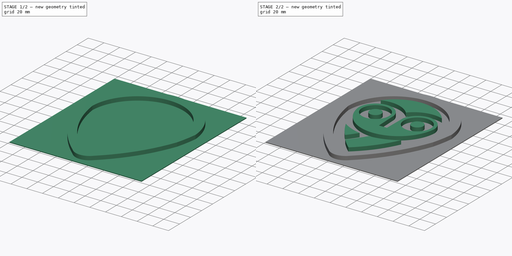
[diagram: build sequence overview — one tinted view per stage of 2, left to right]
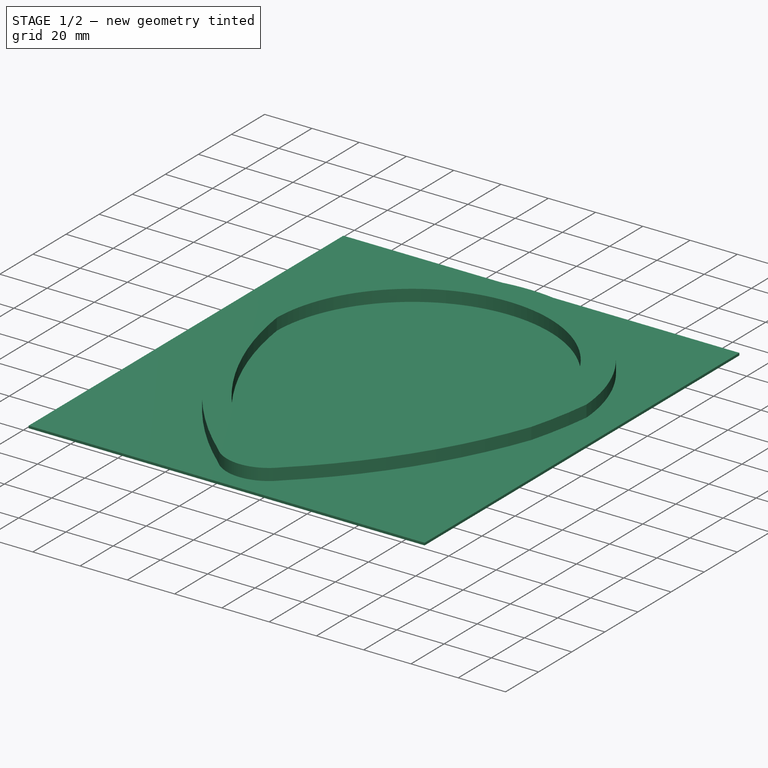
[diagram: stage 1 of 2 — iso view after this stage's code; geometry added in this stage tinted green]
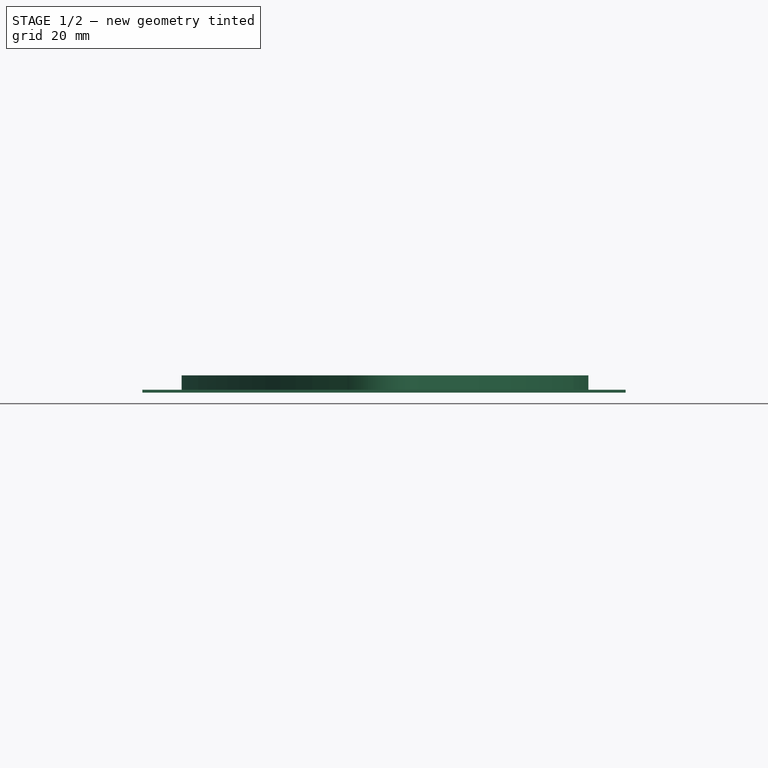
[diagram: stage 1 of 2 — front view after this stage's code; geometry added in this stage tinted green]
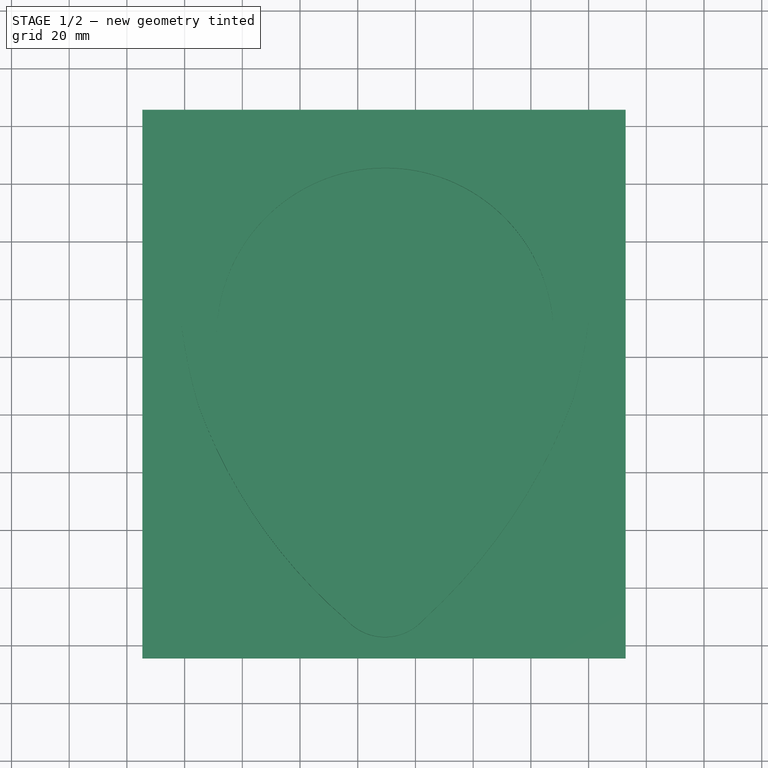
[diagram: stage 1 of 2 — top view after this stage's code; geometry added in this stage tinted green]
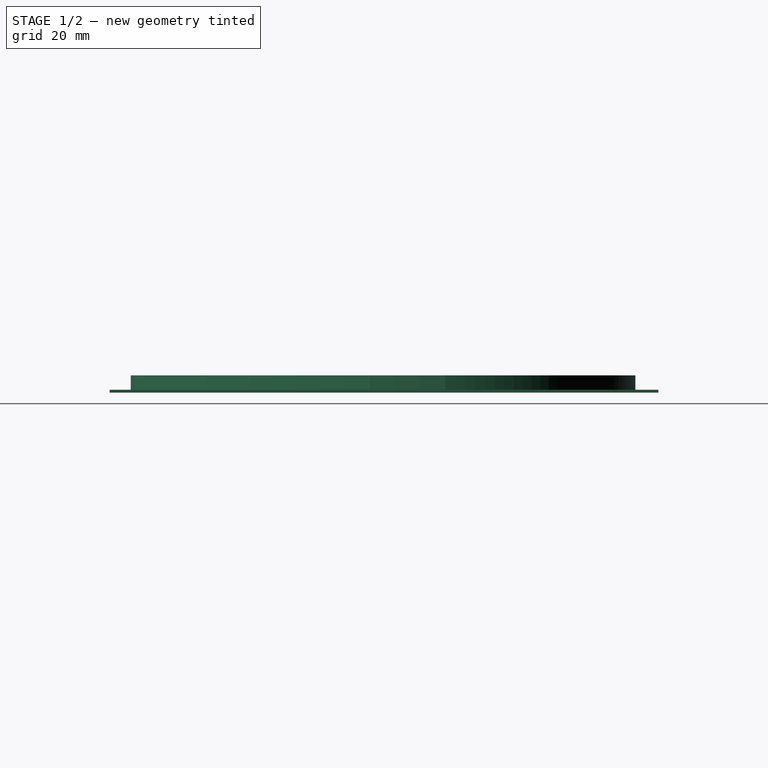
[diagram: stage 1 of 2 — right view after this stage's code; geometry added in this stage tinted green]
FCSTD DOCUMENT  (FreeCAD 0.16R6706 (Git))
Label: NSLOGO
License: All rights reserved
LicenseURL: http://en.wikipedia.org/wiki/All_rights_reserved
objects: Sketcher::SketchObject×5, PartDesign::Pad×3, PartDesign::Pocket×1, Part::Feature×1
note: 14 computed .brp shape members not serialized (recipe doc carries the construction recipe); baked Part::Feature solids carry a one-line shape summary decoded from their .brp

FEATURE [Sketcher::SketchObject] Sketch010  label="NS001"
  Placement = pos=(0,0,5) rot=(0,0,1;0rad)
  sketch-geometry (30):
    g0: Circle CenterX=83.0307 CenterY=-107.539 CenterZ=0 NormalX=0 NormalY=0 NormalZ=1 Radius=7.48536
    g1: Circle CenterX=136.173 CenterY=-107.537 CenterZ=0 NormalX=0 NormalY=0 NormalZ=1 Radius=7.48536
    g2: Circle CenterX=83.0307 CenterY=-107.539 CenterZ=0 NormalX=0 NormalY=0 NormalZ=1 Radius=17.1287
    g3: Circle CenterX=136.173 CenterY=-107.537 CenterZ=0 NormalX=0 NormalY=0 NormalZ=1 Radius=17.1287
    g4: LineSegment StartX=104.908 StartY=-132.509 StartZ=0 EndX=114.955 EndY=-132.462 EndZ=0
    g5: LineSegment StartX=114.955 StartY=-132.462 StartZ=0 EndX=115.359 EndY=-104.014 EndZ=0
    g6: LineSegment StartX=104.908 StartY=-132.509 StartZ=0 EndX=103.786 EndY=-103.688 EndZ=0
    g7: ArcOfCircle CenterX=83.0307 CenterY=-107.539 CenterZ=0 NormalX=0 NormalY=0 NormalZ=1 Radius=21.1096 StartAngle=0.183428 EndAngle=3.3182
    g8: ArcOfCircle CenterX=136.173 CenterY=-107.537 CenterZ=0 NormalX=0 NormalY=0 NormalZ=1 Radius=21.1096 StartAngle=0.0388727 EndAngle=2.97393
    g9: ArcOfCircle CenterX=109.472 CenterY=-102.981 CenterZ=0 NormalX=0 NormalY=0 NormalZ=1 Radius=47.9405 StartAngle=3.31488 EndAngle=6.2052
    g10: ArcOfCircle CenterX=109.648 CenterY=-110.35 CenterZ=0 NormalX=0 NormalY=0 NormalZ=1 Radius=48.8663 StartAngle=0.649284 EndAngle=2.48848
    g11: ArcOfCircle CenterX=136.234 CenterY=-114.304 CenterZ=0 NormalX=0 NormalY=0 NormalZ=1 Radius=35.6983 StartAngle=1.21792 EndAngle=2.41367
    g12: ArcOfCircle CenterX=82.8423 CenterY=-114.452 CenterZ=0 NormalX=0 NormalY=0 NormalZ=1 Radius=35.8642 StartAngle=0.729343 EndAngle=1.91207
    g13: ArcOfCircle CenterX=109.487 CenterY=-98.9331 CenterZ=0 NormalX=0 NormalY=0 NormalZ=1 Radius=61 StartAngle=4.73997 EndAngle=5.32413
    g14: ArcOfCircle CenterX=109.487 CenterY=-98.9331 CenterZ=0 NormalX=0 NormalY=0 NormalZ=1 Radius=61 StartAngle=4.09549 EndAngle=4.5385
    g15: ArcOfCircle CenterX=109.511 CenterY=-112.867 CenterZ=0 NormalX=0 NormalY=0 NormalZ=1 Radius=58.3912 StartAngle=0.0949348 EndAngle=3.11567
    g16: ArcOfCircle CenterX=109.475 CenterY=-112.795 CenterZ=0 NormalX=0 NormalY=0 NormalZ=1 Radius=70.5919 StartAngle=0.0660885 EndAngle=3.09382
    g17: ArcOfCircle CenterX=-10.2169 CenterY=-65.1135 CenterZ=0 NormalX=0 NormalY=0 NormalZ=1 Radius=197.478 StartAngle=5.45063 EndAngle=5.9255
    g18: ArcOfCircle CenterX=-3.87731 CenterY=-85.4589 CenterZ=0 NormalX=0 NormalY=0 NormalZ=1 Radius=185.183 StartAngle=6.01655 EndAngle=6.16043
    g19: ArcOfCircle CenterX=213.212 CenterY=-86.8898 CenterZ=0 NormalX=0 NormalY=0 NormalZ=1 Radius=175.699 StartAngle=3.2702 EndAngle=3.4279
    g20: ArcOfCircle CenterX=213.053 CenterY=-75.5678 CenterZ=0 NormalX=0 NormalY=0 NormalZ=1 Radius=179.077 StartAngle=3.48884 EndAngle=4.00249
    g21: ArcOfCircle CenterX=109.417 CenterY=-199.252 CenterZ=0 NormalX=0 NormalY=0 NormalZ=1 Radius=17.8396 StartAngle=3.88949 EndAngle=5.55087
    g22: ArcOfCircle CenterX=191.338 CenterY=-92.2056 CenterZ=0 NormalX=0 NormalY=0 NormalZ=1 Radius=141.5 StartAngle=3.27733 EndAngle=4.05713
    g23: ArcOfCircle CenterX=17.955 CenterY=-88.2496 CenterZ=0 NormalX=0 NormalY=0 NormalZ=1 Radius=150.895 StartAngle=5.40484 EndAngle=6.15639
    g24: ArcOfCircle CenterX=109.699 CenterY=-201.02 CenterZ=0 NormalX=0 NormalY=0 NormalZ=1 Radius=5.69685 StartAngle=3.77681 EndAngle=5.6499
    g25: ArcOfCircle CenterX=19.2733 CenterY=-90.5452 CenterZ=0 NormalX=0 NormalY=0 NormalZ=1 Radius=138.16 StartAngle=5.42751 EndAngle=5.84736
    g26: ArcOfCircle CenterX=191.18 CenterY=-89.6239 CenterZ=0 NormalX=0 NormalY=0 NormalZ=1 Radius=131.048 StartAngle=3.60916 EndAngle=3.82139
    g27: ArcOfCircle CenterX=190.198 CenterY=-101.501 CenterZ=0 NormalX=0 NormalY=0 NormalZ=1 Radius=123.161 StartAngle=3.84155 EndAngle=4.00184
    g28: ArcOfCircle CenterX=8.60048 CenterY=-101.517 CenterZ=0 NormalX=0 NormalY=0 NormalZ=1 Radius=118.026 StartAngle=5.54617 EndAngle=5.76564
    g29: ArcOfCircle CenterX=5.62328 CenterY=-99.6648 CenterZ=0 NormalX=0 NormalY=0 NormalZ=1 Radius=110.585 StartAngle=5.57011 EndAngle=5.71669
  constraints (39):
    c: Coincident(g8,g5)
    c: Coincident(g6,g7)
    c: Radius(g7) = 21.1096
    c: Radius(g8) = 21.1096
    c: Coincident(g9,g7)
    c: Coincident(g8,g9)
    c: Coincident(g6,g4)
    c: Distance(g6,g5) = 11.5779
    c: Distance(g4,g4) = 10.0469
    c: Angle(g5,g4) = 1.58975
    c: Angle(g4,g6) = 1.60497
    c: Coincident(g11,g10)
    c: Coincident(g12,g11)
    c: Coincident(g12,g10)
    c: Coincident(g13,g14)
    c: Radius(g14) = 61
    c: Equal(g14,g13)
    c: Coincident(g1,g8)
    c: Coincident(g0,g2)
    c: Coincident(g7,g0)
    c: Coincident(g18,g17)
    c: Coincident(g18,g16)
    c: Coincident(g20,g19)
    c: Coincident(g19,g16)
    c: Coincident(g21,g20)
    c: Coincident(g17,g21)
    c: Coincident(g22,g15)
    c: Coincident(g23,g15)
    c: Coincident(g24,g22)
    c: Coincident(g23,g24)
    c: Coincident(g3,g1)
    c: Coincident(g25,g13)
    c: Coincident(g27,g25)
    c: Coincident(g26,g14)
    c: Coincident(g28,g27)
    c: Coincident(g28,g13)
    c: Coincident(g29,g14)
    c: Coincident(g26,g29)
    c: Coincident(g4,g5)
FEATURE [Sketcher::SketchObject] Sketch
  sketch-geometry (4):
    g0: LineSegment StartX=25.3421 StartY=-34.2731 StartZ=0 EndX=192.854 EndY=-34.2731 EndZ=0
    g1: LineSegment StartX=192.854 StartY=-34.2731 StartZ=0 EndX=192.854 EndY=-224.422 EndZ=0
    g2: LineSegment StartX=192.854 StartY=-224.422 StartZ=0 EndX=25.3421 EndY=-224.422 EndZ=0
    g3: LineSegment StartX=25.3421 StartY=-224.422 StartZ=0 EndX=25.3421 EndY=-34.2731 EndZ=0
  constraints (8):
    c: Coincident(g0,g1)
    c: Coincident(g1,g2)
    c: Coincident(g2,g3)
    c: Coincident(g3,g0)
    c: Horizontal(g0)
    c: Horizontal(g2)
    c: Vertical(g1)
    c: Vertical(g3)
FEATURE [PartDesign::Pad] Pad
  Length = 1
  Length2 = 100
  Sketch = -> Sketch
  Type = 0
FEATURE [Sketcher::SketchObject] Sketch011  label="NS002"
  Placement = pos=(0,0,1) rot=(0,0,1;0rad)
  Support = -> Pad [Face6]
  sketch-geometry (10):
    g0: ArcOfCircle CenterX=109.511 CenterY=-112.867 CenterZ=0 NormalX=0 NormalY=0 NormalZ=1 Radius=58.3912 StartAngle=0.0949348 EndAngle=3.11567
    g1: ArcOfCircle CenterX=109.475 CenterY=-112.795 CenterZ=0 NormalX=0 NormalY=0 NormalZ=1 Radius=70.5919 StartAngle=0.0660885 EndAngle=3.09382
    g2: ArcOfCircle CenterX=-10.2169 CenterY=-65.1135 CenterZ=0 NormalX=0 NormalY=0 NormalZ=1 Radius=197.478 StartAngle=5.45063 EndAngle=5.9255
    g3: ArcOfCircle CenterX=-3.87731 CenterY=-85.4589 CenterZ=0 NormalX=0 NormalY=0 NormalZ=1 Radius=185.183 StartAngle=6.01655 EndAngle=6.16043
    g4: ArcOfCircle CenterX=213.212 CenterY=-86.8898 CenterZ=0 NormalX=0 NormalY=0 NormalZ=1 Radius=175.699 StartAngle=3.2702 EndAngle=3.4279
    g5: ArcOfCircle CenterX=213.053 CenterY=-75.5678 CenterZ=0 NormalX=0 NormalY=0 NormalZ=1 Radius=179.077 StartAngle=3.48884 EndAngle=4.00249
    g6: ArcOfCircle CenterX=109.417 CenterY=-199.252 CenterZ=0 NormalX=0 NormalY=0 NormalZ=1 Radius=17.8396 StartAngle=3.88949 EndAngle=5.55087
    g7: ArcOfCircle CenterX=191.338 CenterY=-92.2056 CenterZ=0 NormalX=0 NormalY=0 NormalZ=1 Radius=141.5 StartAngle=3.27733 EndAngle=4.05713
    g8: ArcOfCircle CenterX=17.955 CenterY=-88.2496 CenterZ=0 NormalX=0 NormalY=0 NormalZ=1 Radius=150.895 StartAngle=5.40484 EndAngle=6.15639
    g9: ArcOfCircle CenterX=109.699 CenterY=-201.02 CenterZ=0 NormalX=0 NormalY=0 NormalZ=1 Radius=5.69685 StartAngle=3.77681 EndAngle=5.6499
  constraints (10):
    c: Coincident(g3,g2)
    c: Coincident(g3,g1)
    c: Coincident(g5,g4)
    c: Coincident(g4,g1)
    c: Coincident(g6,g5)
    c: Coincident(g2,g6)
    c: Coincident(g7,g0)
    c: Coincident(g8,g0)
    c: Coincident(g9,g7)
    c: Coincident(g8,g9)
FEATURE [PartDesign::Pad] Pad001
  Length = 5
  Length2 = 100
  Sketch = -> Sketch011
  Type = 0
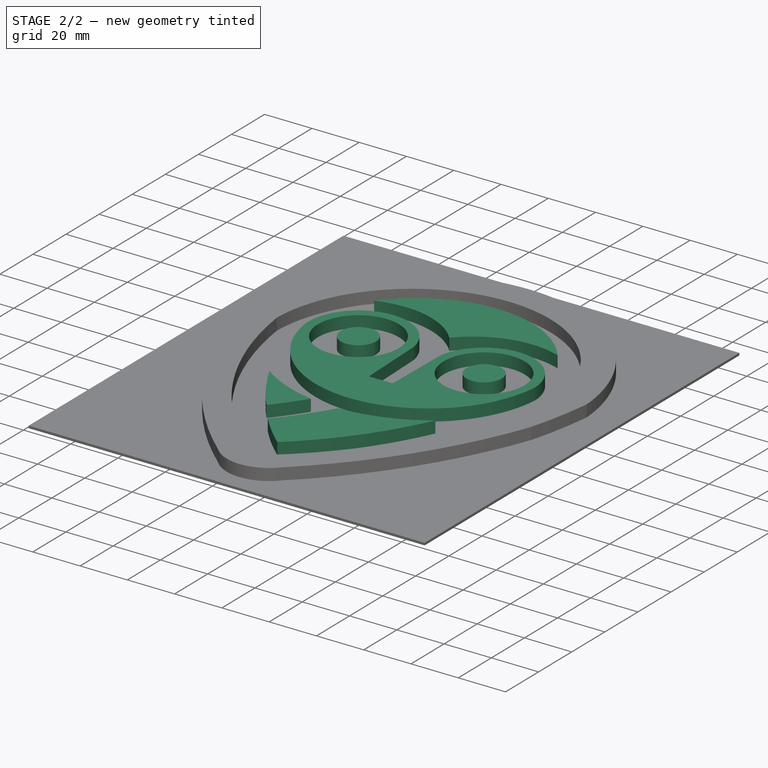
[diagram: stage 2 of 2 — iso view after this stage's code; geometry added in this stage tinted green]
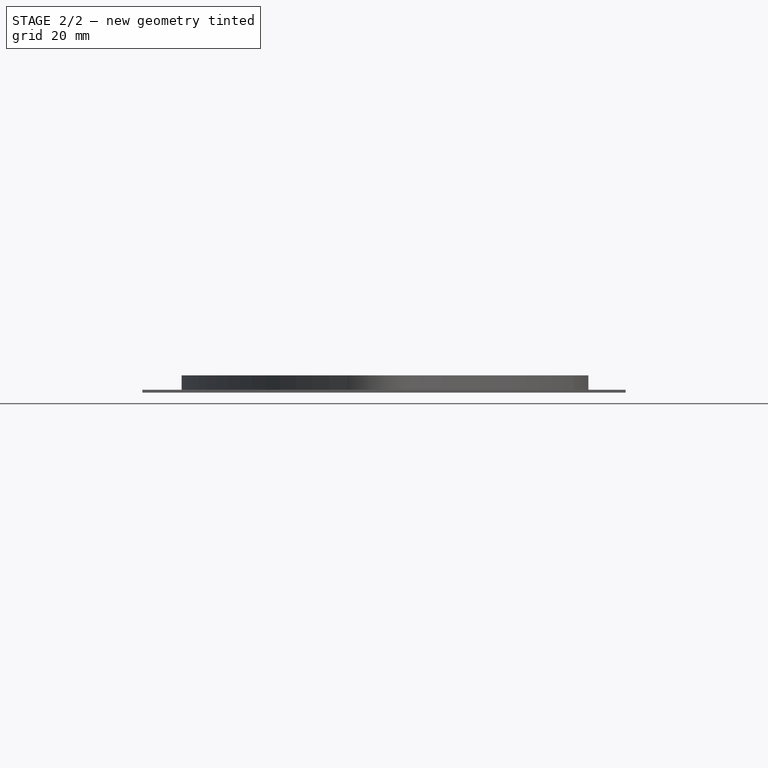
[diagram: stage 2 of 2 — front view after this stage's code; geometry added in this stage tinted green]
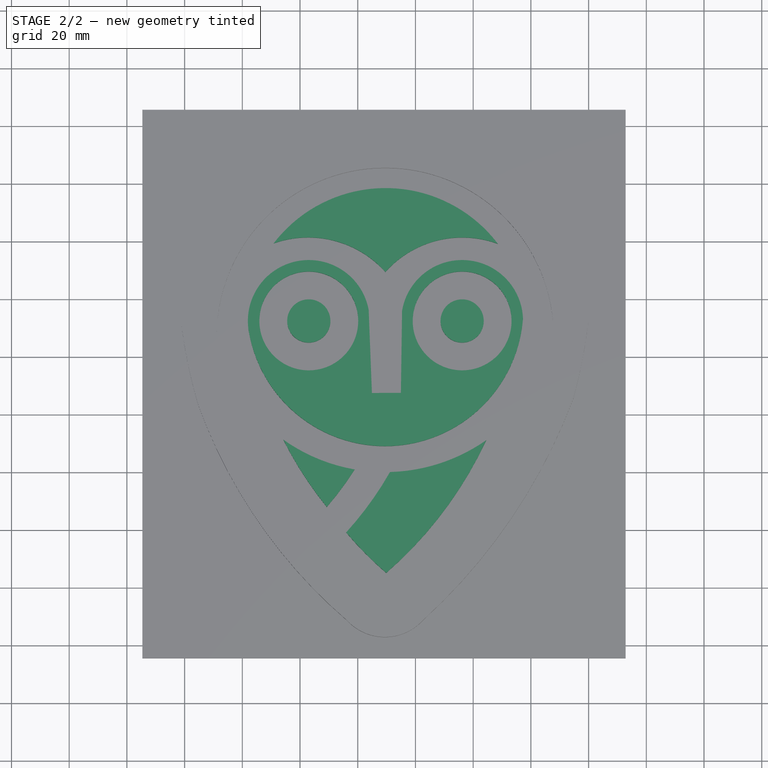
[diagram: stage 2 of 2 — top view after this stage's code; geometry added in this stage tinted green]
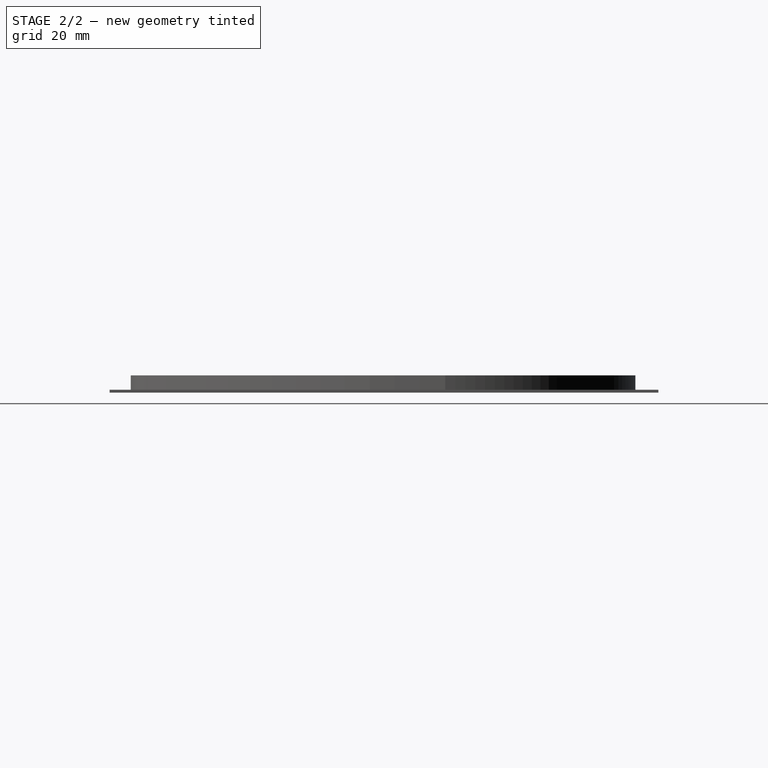
[diagram: stage 2 of 2 — right view after this stage's code; geometry added in this stage tinted green]
FEATURE [Sketcher::SketchObject] Sketch012  label="NS003"
  Placement = pos=(0,0,1) rot=(0,0,1;0rad)
  Support = -> Pad001 [Face18]
  sketch-geometry (16):
    g0: LineSegment StartX=104.908 StartY=-132.509 StartZ=0 EndX=114.955 EndY=-132.462 EndZ=0
    g1: LineSegment StartX=114.955 StartY=-132.462 StartZ=0 EndX=115.359 EndY=-104.014 EndZ=0
    g2: LineSegment StartX=104.908 StartY=-132.509 StartZ=0 EndX=103.786 EndY=-103.688 EndZ=0
    g3: ArcOfCircle CenterX=83.0307 CenterY=-107.539 CenterZ=0 NormalX=0 NormalY=0 NormalZ=1 Radius=21.1096 StartAngle=0.183428 EndAngle=3.3182
    g4: ArcOfCircle CenterX=136.173 CenterY=-107.537 CenterZ=0 NormalX=0 NormalY=0 NormalZ=1 Radius=21.1096 StartAngle=0.0388727 EndAngle=2.97393
    g5: ArcOfCircle CenterX=109.472 CenterY=-102.981 CenterZ=0 NormalX=0 NormalY=0 NormalZ=1 Radius=47.9405 StartAngle=3.31488 EndAngle=6.2052
    g6: ArcOfCircle CenterX=109.648 CenterY=-110.35 CenterZ=0 NormalX=0 NormalY=0 NormalZ=1 Radius=48.8663 StartAngle=0.649284 EndAngle=2.48848
    g7: ArcOfCircle CenterX=136.234 CenterY=-114.304 CenterZ=0 NormalX=0 NormalY=0 NormalZ=1 Radius=35.6983 StartAngle=1.21792 EndAngle=2.41367
    g8: ArcOfCircle CenterX=82.8423 CenterY=-114.452 CenterZ=0 NormalX=0 NormalY=0 NormalZ=1 Radius=35.8642 StartAngle=0.729343 EndAngle=1.91207
    g9: ArcOfCircle CenterX=109.487 CenterY=-98.9331 CenterZ=0 NormalX=0 NormalY=0 NormalZ=1 Radius=61 StartAngle=4.73997 EndAngle=5.32413
    g10: ArcOfCircle CenterX=109.487 CenterY=-98.9331 CenterZ=0 NormalX=0 NormalY=0 NormalZ=1 Radius=61 StartAngle=4.09549 EndAngle=4.5385
    g11: ArcOfCircle CenterX=19.2733 CenterY=-90.5452 CenterZ=0 NormalX=0 NormalY=0 NormalZ=1 Radius=138.16 StartAngle=5.42751 EndAngle=5.84736
    g12: ArcOfCircle CenterX=191.18 CenterY=-89.6239 CenterZ=0 NormalX=0 NormalY=0 NormalZ=1 Radius=131.048 StartAngle=3.60916 EndAngle=3.82139
    g13: ArcOfCircle CenterX=190.198 CenterY=-101.501 CenterZ=0 NormalX=0 NormalY=0 NormalZ=1 Radius=123.161 StartAngle=3.84155 EndAngle=4.00184
    g14: ArcOfCircle CenterX=8.60048 CenterY=-101.517 CenterZ=0 NormalX=0 NormalY=0 NormalZ=1 Radius=118.026 StartAngle=5.54617 EndAngle=5.76564
    g15: ArcOfCircle CenterX=5.62328 CenterY=-99.6648 CenterZ=0 NormalX=0 NormalY=0 NormalZ=1 Radius=110.585 StartAngle=5.57011 EndAngle=5.71669
  constraints (25):
    c: Coincident(g4,g1)
    c: Coincident(g2,g3)
    c: Radius(g3) = 21.1096
    c: Radius(g4) = 21.1096
    c: Coincident(g5,g3)
    c: Coincident(g4,g5)
    c: Coincident(g2,g0)
    c: Distance(g2,g1) = 11.5779
    c: Distance(g0,g0) = 10.0469
    c: Angle(g1,g0) = 1.58975
    c: Angle(g0,g2) = 1.60497
    c: Coincident(g7,g6)
    c: Coincident(g8,g7)
    c: Coincident(g8,g6)
    c: Coincident(g9,g10)
    c: Radius(g10) = 61
    c: Equal(g10,g9)
    c: Coincident(g11,g9)
    c: Coincident(g13,g11)
    c: Coincident(g12,g10)
    c: Coincident(g14,g13)
    c: Coincident(g14,g9)
    c: Coincident(g15,g10)
    c: Coincident(g12,g15)
    c: Coincident(g0,g1)
FEATURE [PartDesign::Pad] Pad002
  Length = 5
  Length2 = 100
  Sketch = -> Sketch012
  Type = 0
FEATURE [Sketcher::SketchObject] Sketch013  label="NS004"
  Placement = pos=(0,0,6) rot=(0,0,1;0rad)
  Support = -> Pad002 [Face37]
  sketch-geometry (4):
    g0: Circle CenterX=83.0307 CenterY=-107.539 CenterZ=0 NormalX=0 NormalY=0 NormalZ=1 Radius=7.48536
    g1: Circle CenterX=136.173 CenterY=-107.537 CenterZ=0 NormalX=0 NormalY=0 NormalZ=1 Radius=7.48536
    g2: Circle CenterX=83.0307 CenterY=-107.539 CenterZ=0 NormalX=0 NormalY=0 NormalZ=1 Radius=17.1287
    g3: Circle CenterX=136.173 CenterY=-107.537 CenterZ=0 NormalX=0 NormalY=0 NormalZ=1 Radius=17.1287
  constraints (2):
    c: Coincident(g0,g2)
    c: Coincident(g3,g1)
FEATURE [PartDesign::Pocket] Pocket
  Length = 5
  Sketch = -> Sketch013
  Type = 0
FEATURE [Part::Feature] Pocket001
  shape: bbox 33.5 x 39.19 x 1.2 mm, 46 faces (baked)
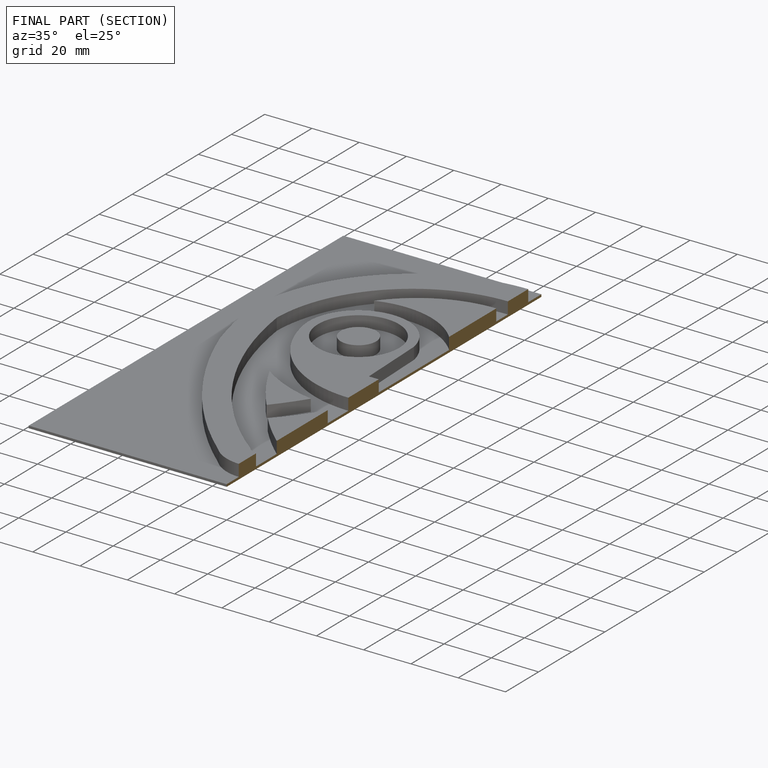
[diagram: finished part — half-section view (interior)]
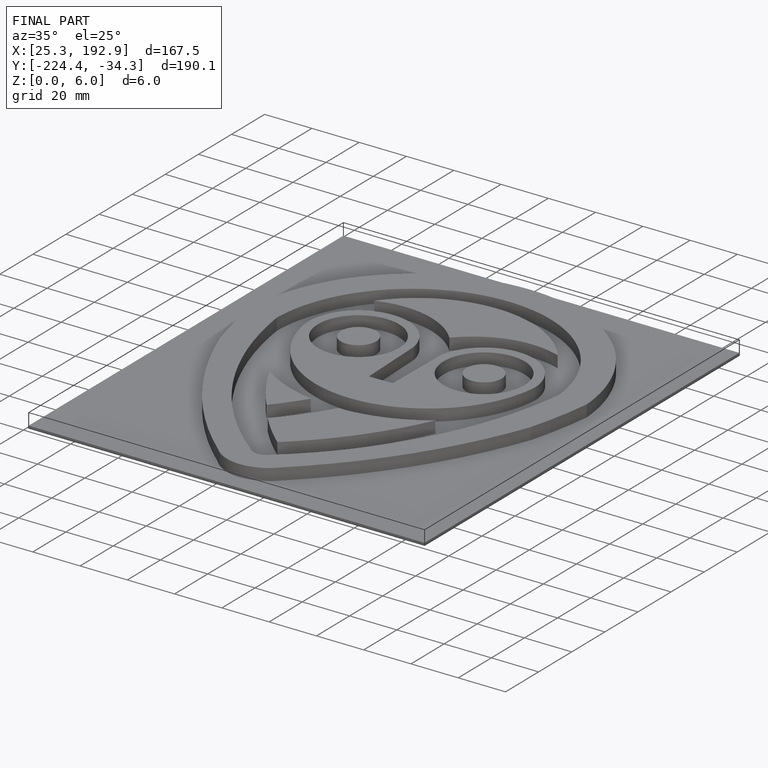
[diagram: finished part — iso view with bounding-box wireframe]
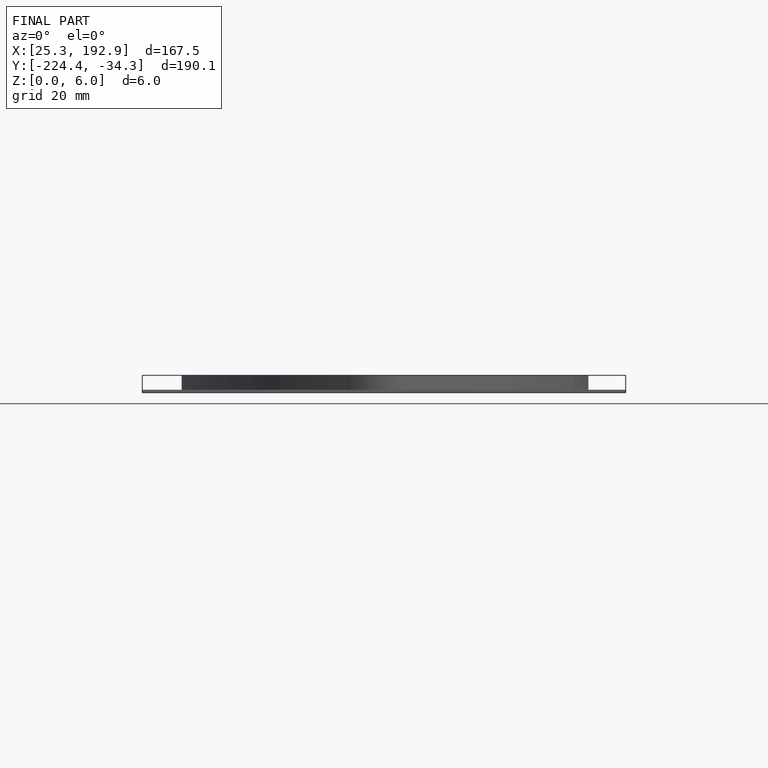
[diagram: finished part — front view with bounding-box wireframe]
